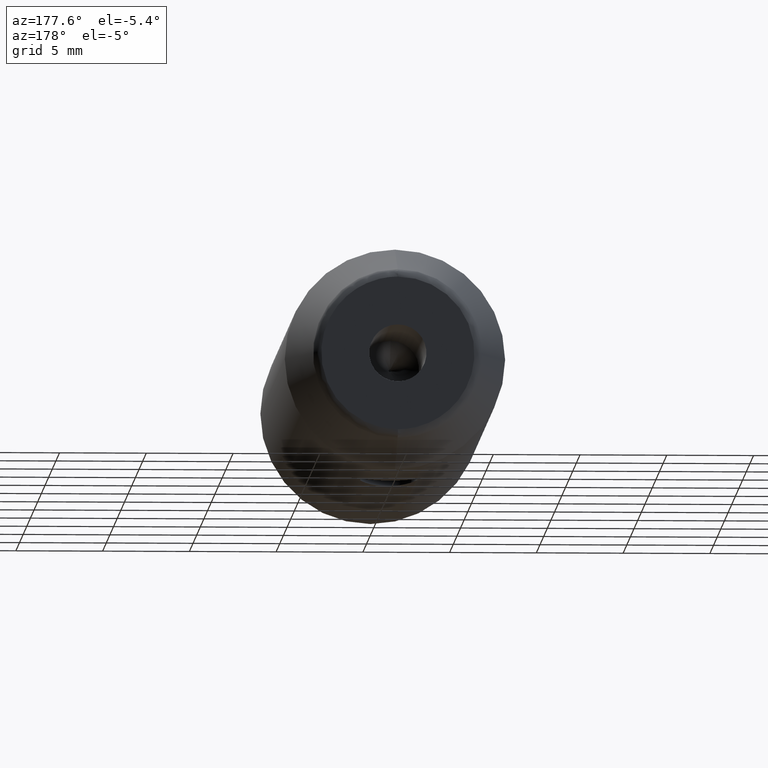
[diagram: clean part render]
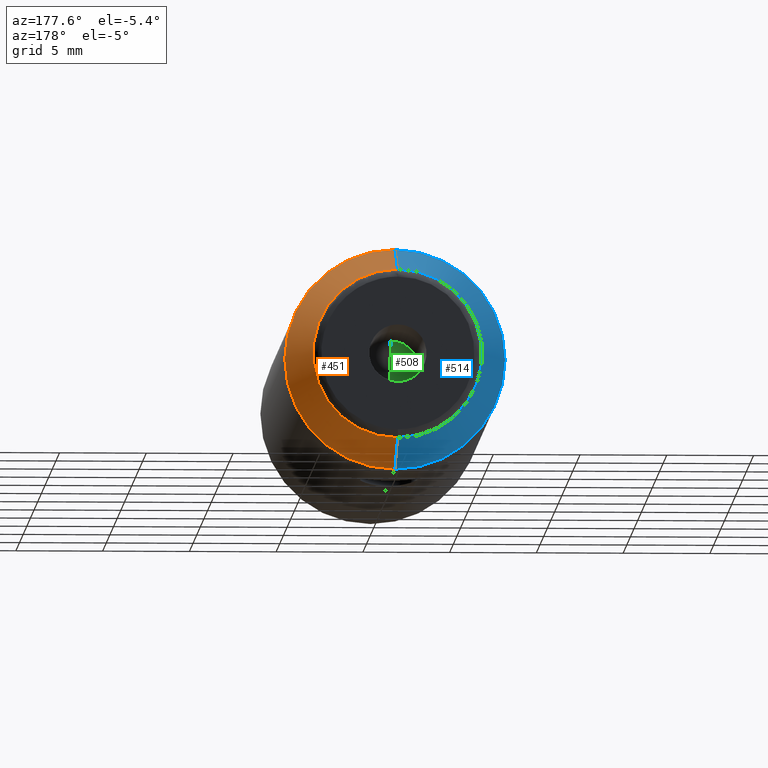
[diagram: same view with three faces highlighted in distinct colors, each labeled with its STEP entity id]
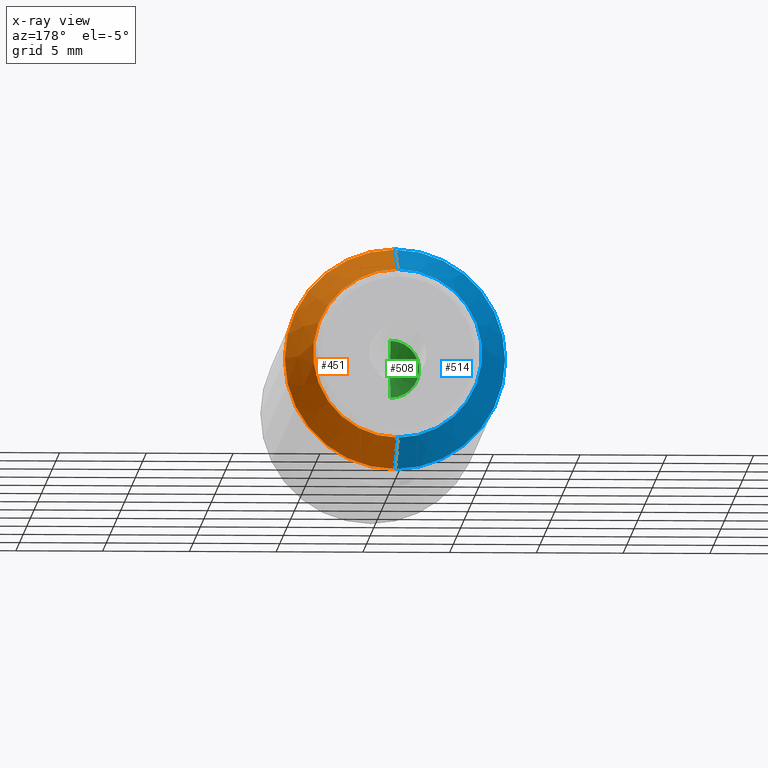
[diagram: x-ray of the same camera — body ghosted, the three highlighted faces saturated]
A machine part, auxiliary view with three faces highlighted in distinct colors.
The next image is the same camera in x-ray (body ghosted, the three faces saturated) — at least one of them is partly hidden behind the body in this view.
Their STEP definitions:

[orange] entity #451 — the highlighted conical surface has half-angle 21.801 deg.
#8 = VECTOR ( 'NONE', #600, 1000.000000000000000 ) ;
#14 = CARTESIAN_POINT ( 'NONE',  ( 0.0000000000000000000, 37.78569533812969900, -4.875721864721072100 ) ) ;
#48 = VERTEX_POINT ( 'NONE', #14 ) ;
#60 = CARTESIAN_POINT ( 'NONE',  ( 0.0000000000000000000, 34.10000000000005800, 0.0000000000000000000 ) ) ;
#84 = AXIS2_PLACEMENT_3D ( 'NONE', #660, #357, #100 ) ;
#92 = ORIENTED_EDGE ( 'NONE', *, *, #615, .T. ) ;
#100 = DIRECTION ( 'NONE',  ( 0.0000000000000000000, 0.0000000000000000000, -1.000000000000000000 ) ) ;
#110 = CONICAL_SURFACE ( 'NONE', #238, 6.349999999969213600, 0.3805063771136944500 ) ;
#133 = EDGE_CURVE ( 'NONE', #738, #505, #632, .T. ) ;
#163 = CARTESIAN_POINT ( 'NONE',  ( 0.0000000000000000000, 34.10000000000005800, -6.349999999978611400 ) ) ;
#165 = DIRECTION ( 'NONE',  ( 0.0000000000000000000, 0.0000000000000000000, -1.000000000000000000 ) ) ;
#168 = CIRCLE ( 'NONE', #520, 6.349999999999999600 ) ;
#185 = DIRECTION ( 'NONE',  ( 0.0000000000000000000, 0.0000000000000000000, -1.000000000000000000 ) ) ;
#198 = CARTESIAN_POINT ( 'NONE',  ( 7.776507174559500000E-016, 34.10000000000005800, 6.349999999978611400 ) ) ;
#238 = AXIS2_PLACEMENT_3D ( 'NONE', #503, #561, #185 ) ;
#294 = LINE ( 'NONE', #408, #722 ) ;
#342 = CARTESIAN_POINT ( 'NONE',  ( 6.873772174861462700E-016, 37.78569533812969900, 4.875721864721072100 ) ) ;
#357 = DIRECTION ( 'NONE',  ( 0.0000000000000000000, -1.000000000000000000, 0.0000000000000000000 ) ) ;
#360 = FACE_OUTER_BOUND ( 'NONE', #787, .T. ) ;
#361 = ORIENTED_EDGE ( 'NONE', *, *, #577, .F. ) ;
#408 = CARTESIAN_POINT ( 'NONE',  ( 0.0000000000000000000, 34.10000000002355600, -6.349999999969213600 ) ) ;
#451 = ADVANCED_FACE ( 'NONE', ( #360 ), #110, .T. ) ;
#477 = DIRECTION ( 'NONE',  ( 0.0000000000000000000, -0.9284766908847654800, -0.3713906763553381800 ) ) ;
#500 = DIRECTION ( 'NONE',  ( -0.0000000000000000000, -1.000000000000000000, -0.0000000000000000000 ) ) ;
#503 = CARTESIAN_POINT ( 'NONE',  ( 0.0000000000000000000, 34.10000000002355600, 0.0000000000000000000 ) ) ;
#505 = VERTEX_POINT ( 'NONE', #198 ) ;
#520 = AXIS2_PLACEMENT_3D ( 'NONE', #60, #500, #165 ) ;
#561 = DIRECTION ( 'NONE',  ( 0.0000000000000000000, -1.000000000000000000, 0.0000000000000000000 ) ) ;
#573 = CIRCLE ( 'NONE', #84, 4.875721864721072100 ) ;
#577 = EDGE_CURVE ( 'NONE', #623, #505, #168, .T. ) ;
#585 = ORIENTED_EDGE ( 'NONE', *, *, #659, .F. ) ;
#600 = DIRECTION ( 'NONE',  ( 4.548224030317354900E-017, -0.9284766908847654800, 0.3713906763553381800 ) ) ;
#615 = EDGE_CURVE ( 'NONE', #48, #738, #573, .T. ) ;
#623 = VERTEX_POINT ( 'NONE', #163 ) ;
#632 = LINE ( 'NONE', #774, #8 ) ;
#641 = ORIENTED_EDGE ( 'NONE', *, *, #133, .T. ) ;
#659 = EDGE_CURVE ( 'NONE', #48, #623, #294, .T. ) ;
#660 = CARTESIAN_POINT ( 'NONE',  ( 0.0000000000000000000, 37.78569533812969900, 0.0000000000000000000 ) ) ;
#722 = VECTOR ( 'NONE', #477, 1000.000000000000000 ) ;
#738 = VERTEX_POINT ( 'NONE', #342 ) ;
#774 = CARTESIAN_POINT ( 'NONE',  ( 7.776507174547990500E-016, 34.10000000002355600, 6.349999999969213600 ) ) ;
#787 = EDGE_LOOP ( 'NONE', ( #92, #641, #361, #585 ) ) ;

[blue] entity #514 — the highlighted conical surface has half-angle 21.801 deg.
#8 = VECTOR ( 'NONE', #600, 1000.000000000000000 ) ;
#10 = ORIENTED_EDGE ( 'NONE', *, *, #564, .T. ) ;
#14 = CARTESIAN_POINT ( 'NONE',  ( 0.0000000000000000000, 37.78569533812969900, -4.875721864721072100 ) ) ;
#48 = VERTEX_POINT ( 'NONE', #14 ) ;
#119 = CARTESIAN_POINT ( 'NONE',  ( 0.0000000000000000000, 34.10000000000005800, 0.0000000000000000000 ) ) ;
#124 = DIRECTION ( 'NONE',  ( 0.0000000000000000000, 0.0000000000000000000, -1.000000000000000000 ) ) ;
#129 = DIRECTION ( 'NONE',  ( -0.0000000000000000000, -1.000000000000000000, -0.0000000000000000000 ) ) ;
#133 = EDGE_CURVE ( 'NONE', #738, #505, #632, .T. ) ;
#163 = CARTESIAN_POINT ( 'NONE',  ( 0.0000000000000000000, 34.10000000000005800, -6.349999999978611400 ) ) ;
#198 = CARTESIAN_POINT ( 'NONE',  ( 7.776507174559500000E-016, 34.10000000000005800, 6.349999999978611400 ) ) ;
#265 = FACE_OUTER_BOUND ( 'NONE', #706, .T. ) ;
#272 = AXIS2_PLACEMENT_3D ( 'NONE', #734, #379, #124 ) ;
#294 = LINE ( 'NONE', #408, #722 ) ;
#325 = CARTESIAN_POINT ( 'NONE',  ( 0.0000000000000000000, 37.78569533812969900, 0.0000000000000000000 ) ) ;
#342 = CARTESIAN_POINT ( 'NONE',  ( 6.873772174861462700E-016, 37.78569533812969900, 4.875721864721072100 ) ) ;
#379 = DIRECTION ( 'NONE',  ( 0.0000000000000000000, -1.000000000000000000, 0.0000000000000000000 ) ) ;
#400 = ORIENTED_EDGE ( 'NONE', *, *, #501, .F. ) ;
#408 = CARTESIAN_POINT ( 'NONE',  ( 0.0000000000000000000, 34.10000000002355600, -6.349999999969213600 ) ) ;
#424 = CIRCLE ( 'NONE', #583, 4.875721864721072100 ) ;
#441 = ORIENTED_EDGE ( 'NONE', *, *, #133, .F. ) ;
#454 = DIRECTION ( 'NONE',  ( 0.0000000000000000000, -1.000000000000000000, 0.0000000000000000000 ) ) ;
#477 = DIRECTION ( 'NONE',  ( 0.0000000000000000000, -0.9284766908847654800, -0.3713906763553381800 ) ) ;
#488 = CIRCLE ( 'NONE', #764, 6.349999999999999600 ) ;
#501 = EDGE_CURVE ( 'NONE', #505, #623, #488, .T. ) ;
#505 = VERTEX_POINT ( 'NONE', #198 ) ;
#510 = DIRECTION ( 'NONE',  ( 0.0000000000000000000, 0.0000000000000000000, -1.000000000000000000 ) ) ;
#514 = ADVANCED_FACE ( 'NONE', ( #265 ), #548, .T. ) ;
#518 = DIRECTION ( 'NONE',  ( 0.0000000000000000000, 0.0000000000000000000, -1.000000000000000000 ) ) ;
#548 = CONICAL_SURFACE ( 'NONE', #272, 6.349999999969213600, 0.3805063771136944500 ) ;
#564 = EDGE_CURVE ( 'NONE', #738, #48, #424, .T. ) ;
#583 = AXIS2_PLACEMENT_3D ( 'NONE', #325, #454, #518 ) ;
#600 = DIRECTION ( 'NONE',  ( 4.548224030317354900E-017, -0.9284766908847654800, 0.3713906763553381800 ) ) ;
#623 = VERTEX_POINT ( 'NONE', #163 ) ;
#630 = ORIENTED_EDGE ( 'NONE', *, *, #659, .T. ) ;
#632 = LINE ( 'NONE', #774, #8 ) ;
#659 = EDGE_CURVE ( 'NONE', #48, #623, #294, .T. ) ;
#706 = EDGE_LOOP ( 'NONE', ( #441, #10, #630, #400 ) ) ;
#722 = VECTOR ( 'NONE', #477, 1000.000000000000000 ) ;
#734 = CARTESIAN_POINT ( 'NONE',  ( 0.0000000000000000000, 34.10000000002355600, 0.0000000000000000000 ) ) ;
#738 = VERTEX_POINT ( 'NONE', #342 ) ;
#764 = AXIS2_PLACEMENT_3D ( 'NONE', #119, #129, #510 ) ;
#774 = CARTESIAN_POINT ( 'NONE',  ( 7.776507174547990500E-016, 34.10000000002355600, 6.349999999969213600 ) ) ;

[green] entity #508 — the highlighted conical surface has half-angle 59 deg.
#6 = AXIS2_PLACEMENT_3D ( 'NONE', #628, #305, #559 ) ;
#19 = VECTOR ( 'NONE', #178, 1000.000000000000000 ) ;
#44 = FACE_OUTER_BOUND ( 'NONE', #336, .T. ) ;
#52 = CARTESIAN_POINT ( 'NONE',  ( -0.03682806110318779400, 27.04959919837903800, -0.05799023608464262000 ) ) ;
#54 = CARTESIAN_POINT ( 'NONE',  ( -0.05990600339138792100, 27.04891416830398800, -0.03072629399164850100 ) ) ;
#82 = CARTESIAN_POINT ( 'NONE',  ( 0.0000000000000000000, 28.00000000002000900, 1.649999999926876600 ) ) ;
#99 = CARTESIAN_POINT ( 'NONE',  ( -0.01393552564953163100, 27.04994115080656100, 0.06741121392065754800 ) ) ;
#114 = CARTESIAN_POINT ( 'NONE',  ( -0.0003362078887242117800, 27.04999999999999700, -0.06893449166124007700 ) ) ;
#115 = CARTESIAN_POINT ( 'NONE',  ( 0.0000000000000000000, 28.00000000002000900, 1.649999999926876600 ) ) ;
#118 = CARTESIAN_POINT ( 'NONE',  ( -0.06199473031990503100, 27.04883564851888500, -0.02592253561083731800 ) ) ;
#120 = DIRECTION ( 'NONE',  ( -0.0000000000000000000, -1.000000000000000000, -0.0000000000000000000 ) ) ;
#144 = DIRECTION ( 'NONE',  ( 1.049727191138502800E-016, 0.5150380749102115900, -0.8571673007020177400 ) ) ;
#169 = VERTEX_POINT ( 'NONE', #440 ) ;
#174 = CARTESIAN_POINT ( 'NONE',  ( -0.05539182298399637100, 27.04907699773490700, 0.03912716110108634800 ) ) ;
#176 = VERTEX_POINT ( 'NONE', #323 ) ;
#178 = DIRECTION ( 'NONE',  ( 0.0000000000000000000, 0.5150380749102115900, 0.8571673007020177400 ) ) ;
#244 = CARTESIAN_POINT ( 'NONE',  ( -0.04264173365966274200, 27.04944890267946500, -0.05299091659055940600 ) ) ;
#248 = CARTESIAN_POINT ( 'NONE',  ( -0.05928680787046030500, 27.04893674117000700, 0.03244835800942789900 ) ) ;
#268 = EDGE_CURVE ( 'NONE', #318, #176, #580, .T. ) ;
#304 = CARTESIAN_POINT ( 'NONE',  ( -0.06198711566624595000, 27.04883522448162800, 0.02541768641283994500 ) ) ;
#305 = DIRECTION ( 'NONE',  ( -0.0000000000000000000, 1.000000000000000000, 0.0000000000000000000 ) ) ;
#318 = VERTEX_POINT ( 'NONE', #654 ) ;
#323 = CARTESIAN_POINT ( 'NONE',  ( 2.020667218548356800E-016, 28.00000000002000900, -1.649999999926876600 ) ) ;
#336 = EDGE_LOOP ( 'NONE', ( #698, #512, #720, #604 ) ) ;
#358 = VERTEX_POINT ( 'NONE', #82 ) ;
#366 = CARTESIAN_POINT ( 'NONE',  ( -0.01593045956839891900, 27.04993769464106300, -0.06737143826049245300 ) ) ;
#368 = CARTESIAN_POINT ( 'NONE',  ( -0.02287066732061754400, 27.04984148710605000, -0.06475025196469262600 ) ) ;
#390 = EDGE_CURVE ( 'NONE', #169, #318, #498, .T. ) ;
#414 = CARTESIAN_POINT ( 'NONE',  ( -0.02784907781936057900, 27.04977643169878800, 0.06306528732341903900 ) ) ;
#419 = EDGE_CURVE ( 'NONE', #169, #358, #784, .T. ) ;
#423 = CARTESIAN_POINT ( 'NONE',  ( -0.004672885302069480400, 27.04999999999999700, 0.06893449166125878400 ) ) ;
#425 = VECTOR ( 'NONE', #144, 1000.000000000000000 ) ;
#428 = CARTESIAN_POINT ( 'NONE',  ( -0.008427006138372038600, 27.04999515709756300, -0.06881049946441653000 ) ) ;
#430 = CARTESIAN_POINT ( 'NONE',  ( -0.06664342830327904500, 27.04865358807239400, 0.002588668568863807800 ) ) ;
#434 = CARTESIAN_POINT ( 'NONE',  ( -0.001008592743562750900, 27.04999969173956800, -0.06892659973045232900 ) ) ;
#440 = CARTESIAN_POINT ( 'NONE',  ( 1.877513054397778300E-013, 27.05000000000005800, 0.06893449166274927300 ) ) ;
#442 = EDGE_CURVE ( 'NONE', #358, #176, #465, .T. ) ;
#465 = CIRCLE ( 'NONE', #782, 1.649999999926876600 ) ;
#484 = CARTESIAN_POINT ( 'NONE',  ( -0.02098029226483854500, 27.04988165018387700, 0.06585377110146599400 ) ) ;
#493 = CARTESIAN_POINT ( 'NONE',  ( -0.06586595535590780700, 27.04868649791209000, -0.01340892255041033400 ) ) ;
#495 = CARTESIAN_POINT ( 'NONE',  ( -0.06352409037608260100, 27.04877672531543500, -0.02097892737440171600 ) ) ;
#497 = CARTESIAN_POINT ( 'NONE',  ( 8.442012540421851700E-018, 27.04999999999999700, -0.06893449166124009100 ) ) ;
#498 = B_SPLINE_CURVE_WITH_KNOTS ( 'NONE', 3,
 ( #601, #423, #658, #99, #484, #414, #687, #610, #733, #797, #174, #248, #304, #555, #552, #430, #616, #493, #495, #118, #54, #557, #801, #551, #244, #52, #725, #368, #366, #428, #434, #673, #114, #497 ),
 .UNSPECIFIED., .F., .F.,
 ( 4, 3, 3, 3, 3, 3, 3, 3, 3, 3, 3, 4 ),
 ( 0.0002813343657787215500, 0.0002953194792517982900, 0.0003169417001386387400, 0.0003388626840397112600, 0.0003614362629643838000, 0.0003847237298882362300, 0.0004084972484748148000, 0.0004238969173407778800, 0.0004469606157164051000, 0.0004699816509425660300, 0.0004922411712119107800, 0.0004932360673560254700 ),
 .UNSPECIFIED. ) ;
#507 = CARTESIAN_POINT ( 'NONE',  ( 0.0000000000000000000, 28.00000000002000900, 0.0000000000000000000 ) ) ;
#508 = ADVANCED_FACE ( 'NONE', ( #44 ), #638, .F. ) ;
#512 = ORIENTED_EDGE ( 'NONE', *, *, #268, .T. ) ;
#551 = CARTESIAN_POINT ( 'NONE',  ( -0.04846968328163629700, 27.04929823788763300, -0.04797931989799758500 ) ) ;
#552 = CARTESIAN_POINT ( 'NONE',  ( -0.06636096358513590700, 27.04866500612730500, 0.01035010489554954000 ) ) ;
#555 = CARTESIAN_POINT ( 'NONE',  ( -0.06477149253634935400, 27.04873054725946300, 0.01816812789755340900 ) ) ;
#557 = CARTESIAN_POINT ( 'NONE',  ( -0.05732615113253668200, 27.04900385457129300, -0.03521160281230363600 ) ) ;
#559 = DIRECTION ( 'NONE',  ( 0.0000000000000000000, 0.0000000000000000000, 1.000000000000000000 ) ) ;
#565 = DIRECTION ( 'NONE',  ( 0.0000000000000000000, 0.0000000000000000000, 1.000000000000000000 ) ) ;
#580 = LINE ( 'NONE', #591, #425 ) ;
#591 = CARTESIAN_POINT ( 'NONE',  ( 2.020667218503582500E-016, 28.00000000002000900, -1.649999999926876600 ) ) ;
#601 = CARTESIAN_POINT ( 'NONE',  ( 1.877513054397778300E-013, 27.05000000000005800, 0.06893449166274927300 ) ) ;
#604 = ORIENTED_EDGE ( 'NONE', *, *, #419, .F. ) ;
#610 = CARTESIAN_POINT ( 'NONE',  ( -0.04023626167989497600, 27.04952112898710900, 0.05547275309806840700 ) ) ;
#616 = CARTESIAN_POINT ( 'NONE',  ( -0.06693163576056637700, 27.04864193787907900, -0.005330564117316029600 ) ) ;
#628 = CARTESIAN_POINT ( 'NONE',  ( 0.0000000000000000000, 28.00000000002000900, 0.0000000000000000000 ) ) ;
#638 = CONICAL_SURFACE ( 'NONE', #6, 1.649999999926876600, 1.029744258676470900 ) ;
#654 = CARTESIAN_POINT ( 'NONE',  ( 8.442012540421851700E-018, 27.04999999999999700, -0.06893449166124009100 ) ) ;
#658 = CARTESIAN_POINT ( 'NONE',  ( -0.009372967763386275500, 27.04997968650973700, 0.06841989503175113800 ) ) ;
#673 = CARTESIAN_POINT ( 'NONE',  ( -0.0006724260839905494900, 27.04999989722763900, -0.06893186083367366900 ) ) ;
#687 = CARTESIAN_POINT ( 'NONE',  ( -0.03399965948671206100, 27.04964966679437300, 0.05929538269126435900 ) ) ;
#698 = ORIENTED_EDGE ( 'NONE', *, *, #390, .T. ) ;
#720 = ORIENTED_EDGE ( 'NONE', *, *, #442, .F. ) ;
#725 = CARTESIAN_POINT ( 'NONE',  ( -0.03004449024901159600, 27.04974204111751800, -0.06204083359859402500 ) ) ;
#733 = CARTESIAN_POINT ( 'NONE',  ( -0.04590148033098154900, 27.04936804285502900, 0.05054272419351364700 ) ) ;
#782 = AXIS2_PLACEMENT_3D ( 'NONE', #507, #120, #565 ) ;
#784 = LINE ( 'NONE', #115, #19 ) ;
#797 = CARTESIAN_POINT ( 'NONE',  ( -0.05057760297835405700, 27.04922463784560400, 0.04491799861081285200 ) ) ;
#801 = CARTESIAN_POINT ( 'NONE',  ( -0.05349363800809483300, 27.04913708847852800, -0.04187477697793975200 ) ) ;